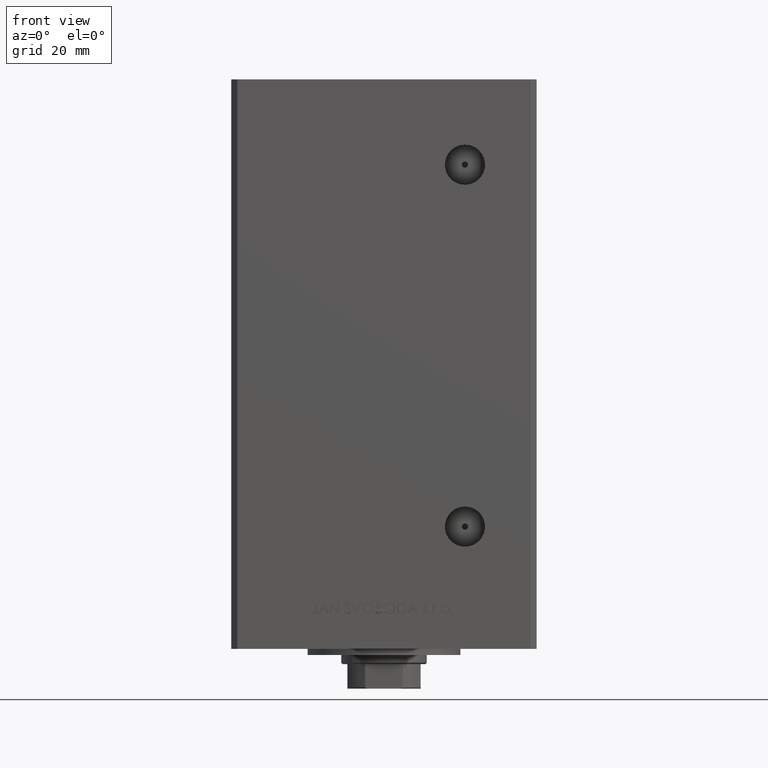
[diagram: clean part render]
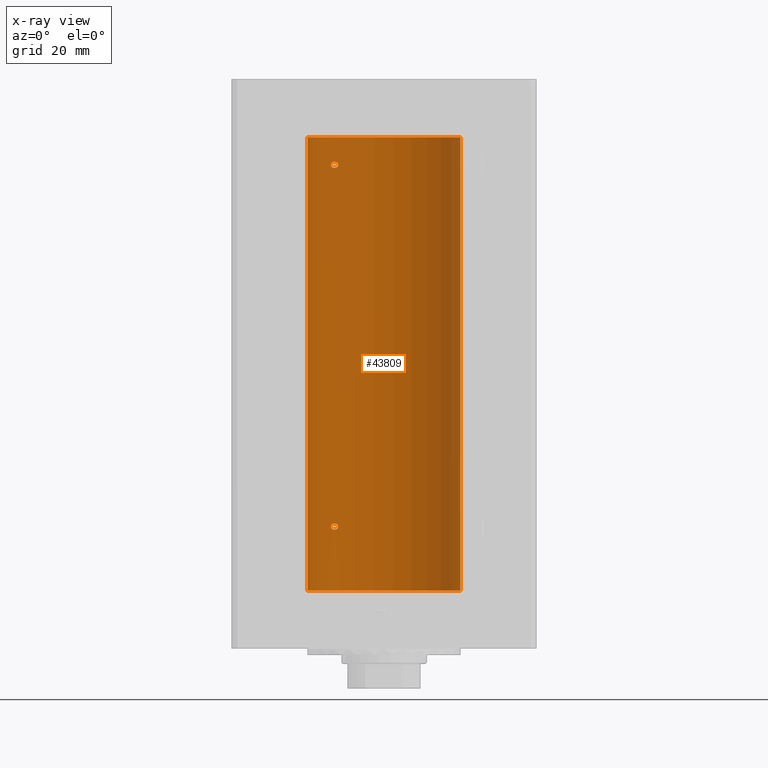
[diagram: x-ray — body ghosted, one internal face saturated and labeled with its STEP entity id]
A machine part, front view, then the same camera in x-ray: the body is ghosted and one INTERNAL B-rep face — a face not visible from any outside direction — is saturated and labeled: STEP entity #43809.
In plain terms, the highlighted cylindrical surface (partial cylindrical patch) has radius 25 mm, axis along (-0, -0, -1).
Its self-contained STEP definition (entity closure, byte-faithful):
#753 = CARTESIAN_POINT ( 'NONE',  ( -16.46913072925702792, 18.81168496547891777, 140.5057775588114168 ) ) ;
#809 = VERTEX_POINT ( 'NONE', #42385 ) ;
#969 = CARTESIAN_POINT ( 'NONE',  ( -15.01482636753733146, 19.98889854010115741, 139.3312026610076941 ) ) ;
#1461 = CARTESIAN_POINT ( 'NONE',  ( -16.71492528194906768, 18.59135325782697734, 20.08014155834204217 ) ) ;
#1706 = CARTESIAN_POINT ( 'NONE',  ( -15.70664578139654566, 19.45064696206090105, 20.10057959949211082 ) ) ;
#1799 = VECTOR ( 'NONE', #42259, 1000.000000000000000 ) ;
#2612 = CARTESIAN_POINT ( 'NONE',  ( -15.00000000000002842, 19.99999999999998224, 20.99999999999998934 ) ) ;
#3350 = ORIENTED_EDGE ( 'NONE', *, *, #44157, .F. ) ;
#3552 = CARTESIAN_POINT ( 'NONE',  ( -15.10490800566735103, 19.92096305044241689, 139.8962931740442173 ) ) ;
#3717 = DIRECTION ( 'NONE',  ( -0.000000000000000000, 0.000000000000000000, 1.000000000000000000 ) ) ;
#4064 = CARTESIAN_POINT ( 'NONE',  ( -16.99843849356149050, 18.33190197607055794, 140.2468335145756839 ) ) ;
#4317 = CARTESIAN_POINT ( 'NONE',  ( -17.14593038898727428, 18.19399314418736324, 140.0959448831964949 ) ) ;
#4761 = CARTESIAN_POINT ( 'NONE',  ( -17.34935157289810093, 17.99999999999978328, 21.00000000000008882 ) ) ;
#4977 = B_SPLINE_CURVE_WITH_KNOTS ( 'NONE', 3,
 ( #30934, #11392, #26864, #34729, #42350, #7595, #19258, #15455, #11645, #19770, #39809, #42862, #27629, #43872, #23587, #43624, #35744, #969, #36246, #16716 ),
 .UNSPECIFIED., .F., .F.,
 ( 4, 2, 2, 2, 2, 2, 2, 2, 2, 4 ),
 ( 2.254873622441466949E-16, 0.0005040871078735091300, 0.001008174215746792746, 0.001512261323620076470, 0.002016348431493359978, 0.002520435539366643485, 0.003024522647239927427, 0.003528609755113210501, 0.003780653309049884347, 0.004032696862986557759 ),
 .UNSPECIFIED. ) ;
#5536 = CARTESIAN_POINT ( 'NONE',  ( -17.15234217094410596, 18.18812579706693100, 20.39657304377494640 ) ) ;
#5576 = VERTEX_POINT ( 'NONE', #34661 ) ;
#6038 = CARTESIAN_POINT ( 'NONE',  ( -15.01482636753736166, 19.98889854010113254, 20.83120266100769769 ) ) ;
#7595 = CARTESIAN_POINT ( 'NONE',  ( -16.83415218046510731, 18.48332662461726983, 138.6343172662811298 ) ) ;
#8066 = DIRECTION ( 'NONE',  ( -0.000000000000000000, -0.000000000000000000, -1.000000000000000000 ) ) ;
#8140 = CARTESIAN_POINT ( 'NONE',  ( -15.00000000000018474, 20.00000000000002487, 139.5840388036241393 ) ) ;
#8389 = CARTESIAN_POINT ( 'NONE',  ( -17.30163983552688833, 18.04615713653367948, 139.8360074727277720 ) ) ;
#9555 = AXIS2_PLACEMENT_3D ( 'NONE', #23555, #39025, #19485 ) ;
#10238 = CARTESIAN_POINT ( 'NONE',  ( -17.19010376497224968, 18.15221652163108601, 21.53567012356800703 ) ) ;
#11288 = ORIENTED_EDGE ( 'NONE', *, *, #23167, .T. ) ;
#11392 = CARTESIAN_POINT ( 'NONE',  ( -17.34935157289747210, 18.00000000000002132, 139.3289983604257998 ) ) ;
#11645 = CARTESIAN_POINT ( 'NONE',  ( -16.34293146994552259, 18.91921593628409681, 138.4973425906726163 ) ) ;
#11663 = VERTEX_POINT ( 'NONE', #18313 ) ;
#12184 = CARTESIAN_POINT ( 'NONE',  ( -15.23594348686699185, 19.82115246225716021, 140.0887219326858144 ) ) ;
#12353 = CARTESIAN_POINT ( 'NONE',  ( -25.00000000000000000, 0.000000000000000000, 148.5000000000000000 ) ) ;
#12387 = ORIENTED_EDGE ( 'NONE', *, *, #24396, .F. ) ;
#13395 = CARTESIAN_POINT ( 'NONE',  ( -16.34293146994555812, 18.91921593628406129, 19.99734259067261277 ) ) ;
#13646 = CARTESIAN_POINT ( 'NONE',  ( -16.83415218046515349, 18.48332662461723785, 20.13431726628115115 ) ) ;
#14051 = CARTESIAN_POINT ( 'NONE',  ( -15.23594348686703448, 19.82115246225713179, 21.58872193268582151 ) ) ;
#14295 = CARTESIAN_POINT ( 'NONE',  ( -16.46913072925707056, 18.81168496547888580, 22.00577755881141329 ) ) ;
#14537 = VERTEX_POINT ( 'NONE', #38278 ) ;
#15455 = CARTESIAN_POINT ( 'NONE',  ( -16.46844752485324648, 18.81003400474354947, 138.5115443190389044 ) ) ;
#15916 = CYLINDRICAL_SURFACE ( 'NONE', #37305, 25.00000000000000000 ) ;
#16170 = FACE_BOUND ( 'NONE', #29769, .T. ) ;
#16716 = CARTESIAN_POINT ( 'NONE',  ( -14.99999999999999112, 20.00000000000000711, 139.4999999999999716 ) ) ;
#16866 = CARTESIAN_POINT ( 'NONE',  ( -15.00000000000002842, 19.99999999999998224, 20.99999999999998934 ) ) ;
#16949 = CARTESIAN_POINT ( 'NONE',  ( -15.58164749401203686, 19.55082150006403907, 20.15667807268518885 ) ) ;
#17195 = CARTESIAN_POINT ( 'NONE',  ( -15.00000000000022027, 20.00000000000000355, 20.91594745860243165 ) ) ;
#17699 = CARTESIAN_POINT ( 'NONE',  ( -15.06722189748651175, 19.94943357555936458, 20.67598032487887849 ) ) ;
#18092 = CARTESIAN_POINT ( 'NONE',  ( -15.58230678163764260, 19.55030131031895380, 21.84373948670293331 ) ) ;
#18313 = CARTESIAN_POINT ( 'NONE',  ( -17.34935157289806185, 17.99999999999981526, 139.5000000000000853 ) ) ;
#19030 = CARTESIAN_POINT ( 'NONE',  ( -17.05007833789892047, 18.28384926940287869, 140.2013739990121621 ) ) ;
#19258 = CARTESIAN_POINT ( 'NONE',  ( -16.71492528194901794, 18.59135325782701642, 138.5801415583420351 ) ) ;
#19291 = CARTESIAN_POINT ( 'NONE',  ( -15.01476641895662567, 19.98894406010707314, 139.6687945634013204 ) ) ;
#19485 = DIRECTION ( 'NONE',  ( 1.000000000000000000, 0.000000000000000000, 0.000000000000000000 ) ) ;
#19545 = CARTESIAN_POINT ( 'NONE',  ( -16.72476285461317502, 18.58415905903083498, 140.4449447607956927 ) ) ;
#19747 = VECTOR ( 'NONE', #27831, 1000.000000000000000 ) ;
#19770 = CARTESIAN_POINT ( 'NONE',  ( -16.08757264251632080, 19.13682698743034649, 138.5034427658481775 ) ) ;
#19803 = CARTESIAN_POINT ( 'NONE',  ( -15.95796937689560480, 19.24499537862567422, 140.4757730996521730 ) ) ;
#20160 = VERTEX_POINT ( 'NONE', #35830 ) ;
#20724 = EDGE_CURVE ( 'NONE', #20160, #5576, #38452, .T. ) ;
#20803 = AXIS2_PLACEMENT_3D ( 'NONE', #50179, #3717, #45125 ) ;
#21018 = CARTESIAN_POINT ( 'NONE',  ( -17.05249165747622442, 18.28208333366434601, 20.29221922003641509 ) ) ;
#21919 = CARTESIAN_POINT ( 'NONE',  ( -16.99843849356152248, 18.33190197607051886, 21.74683351457564839 ) ) ;
#22082 = B_SPLINE_CURVE_WITH_KNOTS ( 'NONE', 3,
 ( #33173, #48167, #48661, #5536, #21018, #13646, #1461, #25069, #13395, #44609, #32919, #1706, #16949, #41038, #44356, #32426, #17699, #6038, #17195, #40542 ),
 .UNSPECIFIED., .F., .F.,
 ( 4, 2, 2, 2, 2, 2, 2, 2, 2, 4 ),
 ( 2.011680962688586771E-16, 0.0005040871078734975291, 0.001008174215746794047, 0.001512261323620090565, 0.002016348431493386866, 0.002520435539366683384, 0.003024522647239979902, 0.003528609755113272951, 0.003780653309049920342, 0.004032696862986568168 ),
 .UNSPECIFIED. ) ;
#22165 = CARTESIAN_POINT ( 'NONE',  ( -15.06763582406801483, 19.94912143246361325, 21.32506993877174395 ) ) ;
#22652 = CARTESIAN_POINT ( 'NONE',  ( -17.05007833789895955, 18.28384926940283606, 21.70137399901213371 ) ) ;
#23036 = FACE_BOUND ( 'NONE', #27013, .T. ) ;
#23110 = CARTESIAN_POINT ( 'NONE',  ( -15.58230678163759642, 19.55030131031898577, 140.3437394867029582 ) ) ;
#23167 = EDGE_CURVE ( 'NONE', #14537, #30910, #38498, .T. ) ;
#23235 = CARTESIAN_POINT ( 'NONE',  ( 25.00000000000000000, 3.061616997868383043E-15, 148.5000000000000000 ) ) ;
#23555 = CARTESIAN_POINT ( 'NONE',  ( 0.000000000000000000, 0.000000000000000000, 0.000000000000000000 ) ) ;
#23587 = CARTESIAN_POINT ( 'NONE',  ( -15.23538646979298505, 19.82157806413532697, 138.9119998952827757 ) ) ;
#24396 = EDGE_CURVE ( 'NONE', #39447, #48044, #39686, .T. ) ;
#24593 = ORIENTED_EDGE ( 'NONE', *, *, #20724, .F. ) ;
#25069 = CARTESIAN_POINT ( 'NONE',  ( -16.46844752485328911, 18.81003400474351039, 20.01154431903891862 ) ) ;
#25962 = CARTESIAN_POINT ( 'NONE',  ( -15.01476641895664876, 19.98894406010705183, 21.16879456340133459 ) ) ;
#26821 = CARTESIAN_POINT ( 'NONE',  ( 0.000000000000000000, 0.000000000000000000, 148.5000000000000000 ) ) ;
#26864 = CARTESIAN_POINT ( 'NONE',  ( -17.30269557861141294, 18.04515136187502478, 139.1660420817557053 ) ) ;
#27013 = EDGE_LOOP ( 'NONE', ( #41445, #3350 ) ) ;
#27153 = CARTESIAN_POINT ( 'NONE',  ( -15.34624284195505162, 19.73614442075940190, 140.1876185318512853 ) ) ;
#27405 = CARTESIAN_POINT ( 'NONE',  ( -14.99999999999999112, 20.00000000000000711, 139.4999999999999716 ) ) ;
#27629 = CARTESIAN_POINT ( 'NONE',  ( -15.58164749401199956, 19.55082150006405328, 138.6566780726851675 ) ) ;
#27831 = DIRECTION ( 'NONE',  ( -0.000000000000000000, -0.000000000000000000, -1.000000000000000000 ) ) ;
#28546 = ORIENTED_EDGE ( 'NONE', *, *, #33825, .F. ) ;
#29274 = CARTESIAN_POINT ( 'NONE',  ( -15.95796937689564565, 19.24499537862563869, 21.97577309965217651 ) ) ;
#29769 = EDGE_LOOP ( 'NONE', ( #28546, #12387 ) ) ;
#30256 = CARTESIAN_POINT ( 'NONE',  ( -15.00000000000021316, 19.99999999999998934, 21.08403880362416061 ) ) ;
#30387 = EDGE_CURVE ( 'NONE', #20160, #14537, #34533, .T. ) ;
#30910 = VERTEX_POINT ( 'NONE', #38628 ) ;
#30934 = CARTESIAN_POINT ( 'NONE',  ( -17.34935157289806185, 17.99999999999981526, 139.5000000000000853 ) ) ;
#31431 = CIRCLE ( 'NONE', #9555, 25.00000000000000000 ) ;
#31721 = CARTESIAN_POINT ( 'NONE',  ( -15.70535969280552280, 19.45169171760802485, 140.3989607721124457 ) ) ;
#32426 = CARTESIAN_POINT ( 'NONE',  ( -15.10490010356607904, 19.92096840819818127, 20.60376667132250716 ) ) ;
#32919 = CARTESIAN_POINT ( 'NONE',  ( -15.95808436639362782, 19.24489366819297942, 20.02426087884952821 ) ) ;
#33173 = CARTESIAN_POINT ( 'NONE',  ( -17.34935157289810093, 17.99999999999978328, 21.00000000000008882 ) ) ;
#33815 = CARTESIAN_POINT ( 'NONE',  ( -17.14593038898733113, 18.19399314418732061, 21.59594488319649130 ) ) ;
#33825 = EDGE_CURVE ( 'NONE', #48044, #39447, #22082, .T. ) ;
#33990 = EDGE_LOOP ( 'NONE', ( #24593, #44367, #11288, #40954 ) ) ;
#34502 = CARTESIAN_POINT ( 'NONE',  ( -17.19010376497220705, 18.15221652163111088, 140.0356701235680248 ) ) ;
#34533 = CIRCLE ( 'NONE', #20803, 25.00000000000000000 ) ;
#34661 = CARTESIAN_POINT ( 'NONE',  ( 25.00000000000000000, 3.061616997868383043E-15, 0.000000000000000000 ) ) ;
#34729 = CARTESIAN_POINT ( 'NONE',  ( -17.15234217094406333, 18.18812579706696653, 138.8965730437749926 ) ) ;
#35014 = CARTESIAN_POINT ( 'NONE',  ( -17.34935157289746854, 18.00000000000001421, 139.6709736906063029 ) ) ;
#35744 = CARTESIAN_POINT ( 'NONE',  ( -15.06722189748648866, 19.94943357555938590, 139.1759803248788785 ) ) ;
#35830 = CARTESIAN_POINT ( 'NONE',  ( 25.00000000000000000, 3.061616997868383043E-15, 148.5000000000000000 ) ) ;
#36246 = CARTESIAN_POINT ( 'NONE',  ( -15.00000000000018119, 20.00000000000001421, 139.4159474586024032 ) ) ;
#37305 = AXIS2_PLACEMENT_3D ( 'NONE', #26821, #8066, #46883 ) ;
#38278 = CARTESIAN_POINT ( 'NONE',  ( -25.00000000000000000, 0.000000000000000000, 148.5000000000000000 ) ) ;
#38325 = CARTESIAN_POINT ( 'NONE',  ( -15.06763582406798818, 19.94912143246363811, 139.8250699387717475 ) ) ;
#38452 = LINE ( 'NONE', #23235, #1799 ) ;
#38498 = LINE ( 'NONE', #12353, #19747 ) ;
#38628 = CARTESIAN_POINT ( 'NONE',  ( -25.00000000000000000, 0.000000000000000000, 0.000000000000000000 ) ) ;
#39025 = DIRECTION ( 'NONE',  ( -0.000000000000000000, 0.000000000000000000, 1.000000000000000000 ) ) ;
#39447 = VERTEX_POINT ( 'NONE', #16866 ) ;
#39686 = B_SPLINE_CURVE_WITH_KNOTS ( 'NONE', 3,
 ( #2612, #30256, #25962, #22165, #45754, #14051, #41697, #18092, #48822, #29274, #45018, #14295, #41444, #21919, #22652, #33815, #10238, #49313, #45265, #41943 ),
 .UNSPECIFIED., .F., .F.,
 ( 4, 2, 2, 2, 2, 2, 2, 2, 2, 4 ),
 ( 0.004032696862986568168, 0.004284699222246932983, 0.004536701581507298665, 0.005040706300028030031, 0.005544711018548761396, 0.006048715737069493628, 0.007056725174110963297, 0.007308727533371326378, 0.007560729892631690326, 0.008064734611152429497 ),
 .UNSPECIFIED. ) ;
#39809 = CARTESIAN_POINT ( 'NONE',  ( -15.95808436639360117, 19.24489366819300784, 138.5242608788495602 ) ) ;
#40542 = CARTESIAN_POINT ( 'NONE',  ( -15.00000000000002842, 19.99999999999998224, 20.99999999999998934 ) ) ;
#40954 = ORIENTED_EDGE ( 'NONE', *, *, #49689, .F. ) ;
#41038 = CARTESIAN_POINT ( 'NONE',  ( -15.34666241858321634, 19.73581294411414078, 20.31212246053760495 ) ) ;
#41444 = CARTESIAN_POINT ( 'NONE',  ( -16.72476285461321766, 18.58415905903079945, 21.94494476079569978 ) ) ;
#41445 = ORIENTED_EDGE ( 'NONE', *, *, #41565, .F. ) ;
#41565 = EDGE_CURVE ( 'NONE', #11663, #809, #4977, .T. ) ;
#41697 = CARTESIAN_POINT ( 'NONE',  ( -15.34624284195510135, 19.73614442075936992, 21.68761853185130306 ) ) ;
#41943 = CARTESIAN_POINT ( 'NONE',  ( -17.34935157289810093, 17.99999999999978328, 21.00000000000008882 ) ) ;
#42259 = DIRECTION ( 'NONE',  ( -0.000000000000000000, -0.000000000000000000, -1.000000000000000000 ) ) ;
#42350 = CARTESIAN_POINT ( 'NONE',  ( -17.05249165747618534, 18.28208333366438509, 138.7922192200364009 ) ) ;
#42384 = CARTESIAN_POINT ( 'NONE',  ( -16.08745393861402917, 19.13692152169251059, 140.4965015099868992 ) ) ;
#42385 = CARTESIAN_POINT ( 'NONE',  ( -14.99999999999999112, 20.00000000000000711, 139.4999999999999716 ) ) ;
#42862 = CARTESIAN_POINT ( 'NONE',  ( -15.70664578139651546, 19.45064696206092947, 138.6005795994921073 ) ) ;
#43624 = CARTESIAN_POINT ( 'NONE',  ( -15.10490010356605595, 19.92096840819819903, 139.1037666713224610 ) ) ;
#43809 = ADVANCED_FACE ( 'NONE', ( #47132, #16170, #23036 ), #15916, .F. ) ;
#43872 = CARTESIAN_POINT ( 'NONE',  ( -15.34666241858318259, 19.73581294411415854, 138.8121224605375517 ) ) ;
#44157 = EDGE_CURVE ( 'NONE', #809, #11663, #49626, .T. ) ;
#44356 = CARTESIAN_POINT ( 'NONE',  ( -15.23538646979301170, 19.82157806413531631, 20.41199989528276149 ) ) ;
#44367 = ORIENTED_EDGE ( 'NONE', *, *, #30387, .T. ) ;
#44609 = CARTESIAN_POINT ( 'NONE',  ( -16.08757264251635277, 19.13682698743030386, 20.00344276584819525 ) ) ;
#45018 = CARTESIAN_POINT ( 'NONE',  ( -16.08745393861406825, 19.13692152169247507, 21.99650150998692766 ) ) ;
#45125 = DIRECTION ( 'NONE',  ( 1.000000000000000000, 0.000000000000000000, 0.000000000000000000 ) ) ;
#45265 = CARTESIAN_POINT ( 'NONE',  ( -17.34935157289749696, 17.99999999999998224, 21.17097369060632417 ) ) ;
#45754 = CARTESIAN_POINT ( 'NONE',  ( -15.10490800566739011, 19.92096305044238491, 21.39629317404425279 ) ) ;
#46198 = CARTESIAN_POINT ( 'NONE',  ( -17.34935157289806185, 17.99999999999981526, 139.5000000000000853 ) ) ;
#46883 = DIRECTION ( 'NONE',  ( -1.000000000000000000, 0.000000000000000000, 0.000000000000000000 ) ) ;
#47132 = FACE_OUTER_BOUND ( 'NONE', #33990, .T. ) ;
#48044 = VERTEX_POINT ( 'NONE', #4761 ) ;
#48167 = CARTESIAN_POINT ( 'NONE',  ( -17.34935157289749696, 17.99999999999998579, 20.82899836042580688 ) ) ;
#48661 = CARTESIAN_POINT ( 'NONE',  ( -17.30269557861145202, 18.04515136187498570, 20.66604208175573376 ) ) ;
#48822 = CARTESIAN_POINT ( 'NONE',  ( -15.70535969280557254, 19.45169171760800708, 21.89896077211249192 ) ) ;
#49313 = CARTESIAN_POINT ( 'NONE',  ( -17.30163983552693452, 18.04615713653364750, 21.33600747272777909 ) ) ;
#49626 = B_SPLINE_CURVE_WITH_KNOTS ( 'NONE', 3,
 ( #27405, #8140, #19291, #38325, #3552, #12184, #27153, #23110, #31721, #19803, #42384, #753, #19545, #4064, #19030, #4317, #34502, #8389, #35014, #46198 ),
 .UNSPECIFIED., .F., .F.,
 ( 4, 2, 2, 2, 2, 2, 2, 2, 2, 4 ),
 ( 0.004032696862986557759, 0.004284699222246954667, 0.004536701581507351574, 0.005040706300028082940, 0.005544711018548810835, 0.006048715737069539598, 0.007056725174110996257, 0.007308727533371349797, 0.007560729892631701601, 0.008064734611152412150 ),
 .UNSPECIFIED. ) ;
#49689 = EDGE_CURVE ( 'NONE', #5576, #30910, #31431, .T. ) ;
#50179 = CARTESIAN_POINT ( 'NONE',  ( 0.000000000000000000, 0.000000000000000000, 148.5000000000000000 ) ) ;